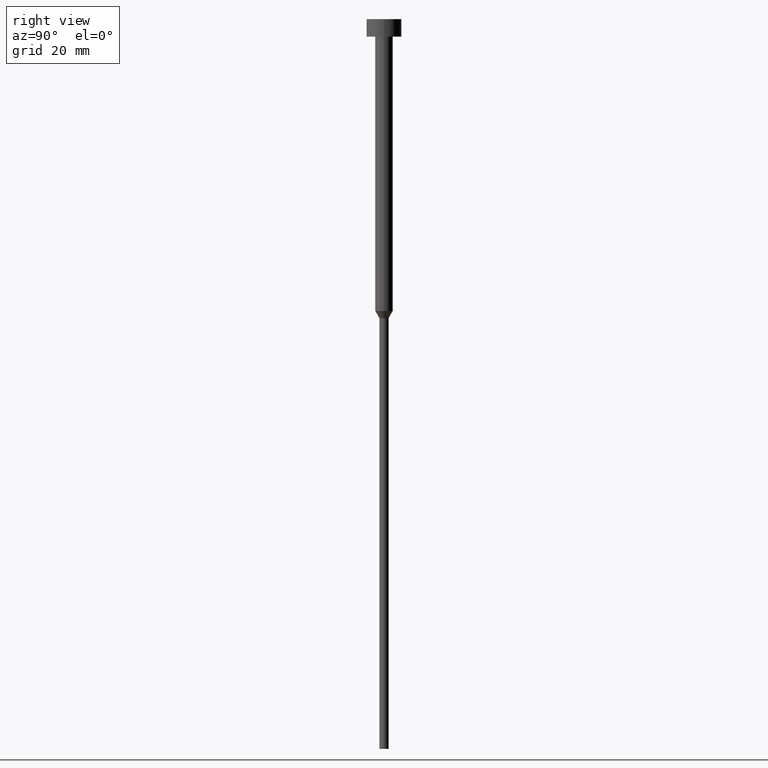
[diagram: clean part render]
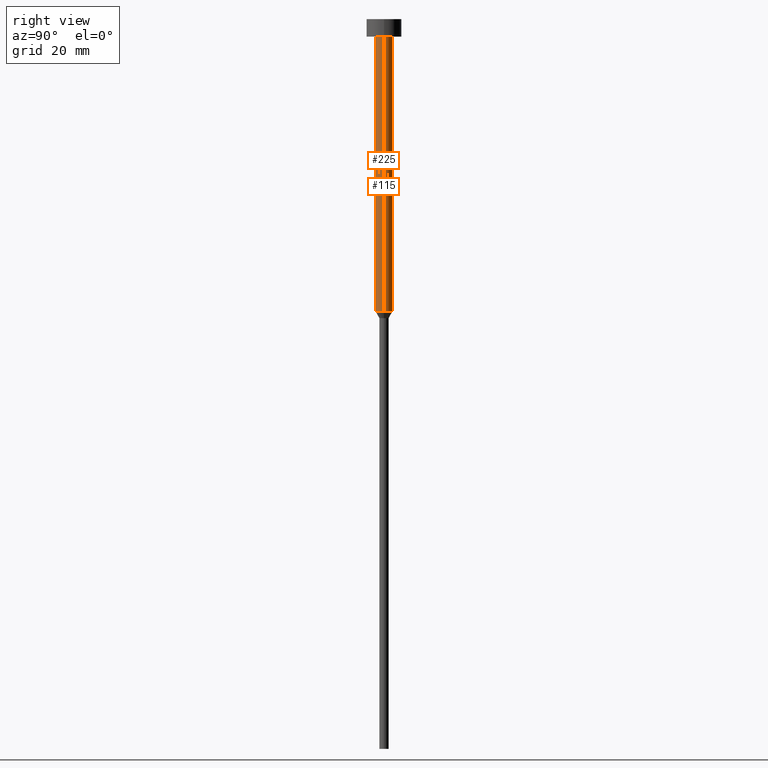
[diagram: same view with one multi-face feature highlighted, each face labeled with its STEP entity id]
A machine part, right view. The highlighted faces form ONE feature: a constant-radius fillet chain: 2 tangent blend faces with common blend radius 1.5 mm. The faces share edges in the B-rep.
Their STEP definitions:
[1] entity #115 (Cylinder):
#5 = CARTESIAN_POINT ( 'NONE',  ( 1.500000000000000000, 0.000000000000000000, -3.000000000000000888 ) ) ;
#8 = AXIS2_PLACEMENT_3D ( 'NONE', #243, #158, #82 ) ;
#20 = CYLINDRICAL_SURFACE ( 'NONE', #123, 1.500000000000000000 ) ;
#21 = CARTESIAN_POINT ( 'NONE',  ( 0.000000000000000000, 0.000000000000000000, -3.000000000000000888 ) ) ;
#29 = VECTOR ( 'NONE', #151, 1000.000000000000000 ) ;
#31 = VECTOR ( 'NONE', #254, 1000.000000000000000 ) ;
#39 = ORIENTED_EDGE ( 'NONE', *, *, #41, .F. ) ;
#41 = EDGE_CURVE ( 'NONE', #221, #64, #251, .T. ) ;
#64 = VERTEX_POINT ( 'NONE', #5 ) ;
#78 = EDGE_CURVE ( 'NONE', #120, #171, #184, .T. ) ;
#82 = DIRECTION ( 'NONE',  ( 1.000000000000000000, 0.000000000000000000, 0.000000000000000000 ) ) ;
#84 = CIRCLE ( 'NONE', #8, 1.500000000000000000 ) ;
#97 = CARTESIAN_POINT ( 'NONE',  ( 1.500000000000000000, 0.000000000000000000, -50.00000000000000000 ) ) ;
#98 = CARTESIAN_POINT ( 'NONE',  ( -1.500000000000000000, 1.836970198721029934E-16, 0.000000000000000000 ) ) ;
#112 = ORIENTED_EDGE ( 'NONE', *, *, #240, .F. ) ;
#114 = CARTESIAN_POINT ( 'NONE',  ( 1.500000000000000000, 0.000000000000000000, 0.000000000000000000 ) ) ;
#115 = ADVANCED_FACE ( 'NONE', ( #234 ), #20, .T. ) ;
#120 = VERTEX_POINT ( 'NONE', #125 ) ;
#123 = AXIS2_PLACEMENT_3D ( 'NONE', #346, #238, #265 ) ;
#125 = CARTESIAN_POINT ( 'NONE',  ( -1.500000000000000000, 1.836970198721029934E-16, -50.00000000000000000 ) ) ;
#136 = DIRECTION ( 'NONE',  ( 1.000000000000000000, 0.000000000000000000, 0.000000000000000000 ) ) ;
#151 = DIRECTION ( 'NONE',  ( -0.000000000000000000, -0.000000000000000000, 1.000000000000000000 ) ) ;
#158 = DIRECTION ( 'NONE',  ( -0.000000000000000000, -0.000000000000000000, 1.000000000000000000 ) ) ;
#161 = CIRCLE ( 'NONE', #176, 1.500000000000000000 ) ;
#171 = VERTEX_POINT ( 'NONE', #207 ) ;
#176 = AXIS2_PLACEMENT_3D ( 'NONE', #21, #247, #136 ) ;
#178 = EDGE_LOOP ( 'NONE', ( #260, #230, #112, #39 ) ) ;
#184 = LINE ( 'NONE', #98, #29 ) ;
#207 = CARTESIAN_POINT ( 'NONE',  ( -1.500000000000000000, 1.836970198721029934E-16, -3.000000000000000888 ) ) ;
#221 = VERTEX_POINT ( 'NONE', #97 ) ;
#230 = ORIENTED_EDGE ( 'NONE', *, *, #78, .T. ) ;
#234 = FACE_OUTER_BOUND ( 'NONE', #178, .T. ) ;
#238 = DIRECTION ( 'NONE',  ( -0.000000000000000000, -0.000000000000000000, 1.000000000000000000 ) ) ;
#240 = EDGE_CURVE ( 'NONE', #64, #171, #161, .T. ) ;
#243 = CARTESIAN_POINT ( 'NONE',  ( 0.000000000000000000, 0.000000000000000000, -50.00000000000000000 ) ) ;
#247 = DIRECTION ( 'NONE',  ( -0.000000000000000000, -0.000000000000000000, 1.000000000000000000 ) ) ;
#251 = LINE ( 'NONE', #114, #31 ) ;
#254 = DIRECTION ( 'NONE',  ( -0.000000000000000000, -0.000000000000000000, 1.000000000000000000 ) ) ;
#260 = ORIENTED_EDGE ( 'NONE', *, *, #268, .T. ) ;
#265 = DIRECTION ( 'NONE',  ( 1.000000000000000000, 0.000000000000000000, 0.000000000000000000 ) ) ;
#268 = EDGE_CURVE ( 'NONE', #221, #120, #84, .T. ) ;
#346 = CARTESIAN_POINT ( 'NONE',  ( 0.000000000000000000, 0.000000000000000000, 0.000000000000000000 ) ) ;
[2] entity #225 (Cylinder):
#5 = CARTESIAN_POINT ( 'NONE',  ( 1.500000000000000000, 0.000000000000000000, -3.000000000000000888 ) ) ;
#22 = DIRECTION ( 'NONE',  ( 1.000000000000000000, 0.000000000000000000, 0.000000000000000000 ) ) ;
#29 = VECTOR ( 'NONE', #151, 1000.000000000000000 ) ;
#31 = VECTOR ( 'NONE', #254, 1000.000000000000000 ) ;
#41 = EDGE_CURVE ( 'NONE', #221, #64, #251, .T. ) ;
#42 = CYLINDRICAL_SURFACE ( 'NONE', #43, 1.500000000000000000 ) ;
#43 = AXIS2_PLACEMENT_3D ( 'NONE', #45, #294, #155 ) ;
#45 = CARTESIAN_POINT ( 'NONE',  ( 0.000000000000000000, 0.000000000000000000, 0.000000000000000000 ) ) ;
#56 = DIRECTION ( 'NONE',  ( -0.000000000000000000, -0.000000000000000000, 1.000000000000000000 ) ) ;
#64 = VERTEX_POINT ( 'NONE', #5 ) ;
#78 = EDGE_CURVE ( 'NONE', #120, #171, #184, .T. ) ;
#92 = ORIENTED_EDGE ( 'NONE', *, *, #41, .T. ) ;
#97 = CARTESIAN_POINT ( 'NONE',  ( 1.500000000000000000, 0.000000000000000000, -50.00000000000000000 ) ) ;
#98 = CARTESIAN_POINT ( 'NONE',  ( -1.500000000000000000, 1.836970198721029934E-16, 0.000000000000000000 ) ) ;
#114 = CARTESIAN_POINT ( 'NONE',  ( 1.500000000000000000, 0.000000000000000000, 0.000000000000000000 ) ) ;
#120 = VERTEX_POINT ( 'NONE', #125 ) ;
#124 = AXIS2_PLACEMENT_3D ( 'NONE', #137, #325, #239 ) ;
#125 = CARTESIAN_POINT ( 'NONE',  ( -1.500000000000000000, 1.836970198721029934E-16, -50.00000000000000000 ) ) ;
#137 = CARTESIAN_POINT ( 'NONE',  ( 0.000000000000000000, 0.000000000000000000, -3.000000000000000888 ) ) ;
#138 = ORIENTED_EDGE ( 'NONE', *, *, #78, .F. ) ;
#144 = ORIENTED_EDGE ( 'NONE', *, *, #295, .F. ) ;
#149 = EDGE_LOOP ( 'NONE', ( #138, #310, #92, #144 ) ) ;
#151 = DIRECTION ( 'NONE',  ( -0.000000000000000000, -0.000000000000000000, 1.000000000000000000 ) ) ;
#155 = DIRECTION ( 'NONE',  ( 1.000000000000000000, 0.000000000000000000, 0.000000000000000000 ) ) ;
#171 = VERTEX_POINT ( 'NONE', #207 ) ;
#175 = CIRCLE ( 'NONE', #124, 1.500000000000000000 ) ;
#184 = LINE ( 'NONE', #98, #29 ) ;
#207 = CARTESIAN_POINT ( 'NONE',  ( -1.500000000000000000, 1.836970198721029934E-16, -3.000000000000000888 ) ) ;
#221 = VERTEX_POINT ( 'NONE', #97 ) ;
#225 = ADVANCED_FACE ( 'NONE', ( #266 ), #42, .T. ) ;
#239 = DIRECTION ( 'NONE',  ( 1.000000000000000000, 0.000000000000000000, 0.000000000000000000 ) ) ;
#251 = LINE ( 'NONE', #114, #31 ) ;
#254 = DIRECTION ( 'NONE',  ( -0.000000000000000000, -0.000000000000000000, 1.000000000000000000 ) ) ;
#257 = AXIS2_PLACEMENT_3D ( 'NONE', #329, #56, #22 ) ;
#266 = FACE_OUTER_BOUND ( 'NONE', #149, .T. ) ;
#294 = DIRECTION ( 'NONE',  ( -0.000000000000000000, -0.000000000000000000, 1.000000000000000000 ) ) ;
#295 = EDGE_CURVE ( 'NONE', #171, #64, #175, .T. ) ;
#310 = ORIENTED_EDGE ( 'NONE', *, *, #354, .T. ) ;
#325 = DIRECTION ( 'NONE',  ( -0.000000000000000000, -0.000000000000000000, 1.000000000000000000 ) ) ;
#329 = CARTESIAN_POINT ( 'NONE',  ( 0.000000000000000000, 0.000000000000000000, -50.00000000000000000 ) ) ;
#349 = CIRCLE ( 'NONE', #257, 1.500000000000000000 ) ;
#354 = EDGE_CURVE ( 'NONE', #120, #221, #349, .T. ) ;